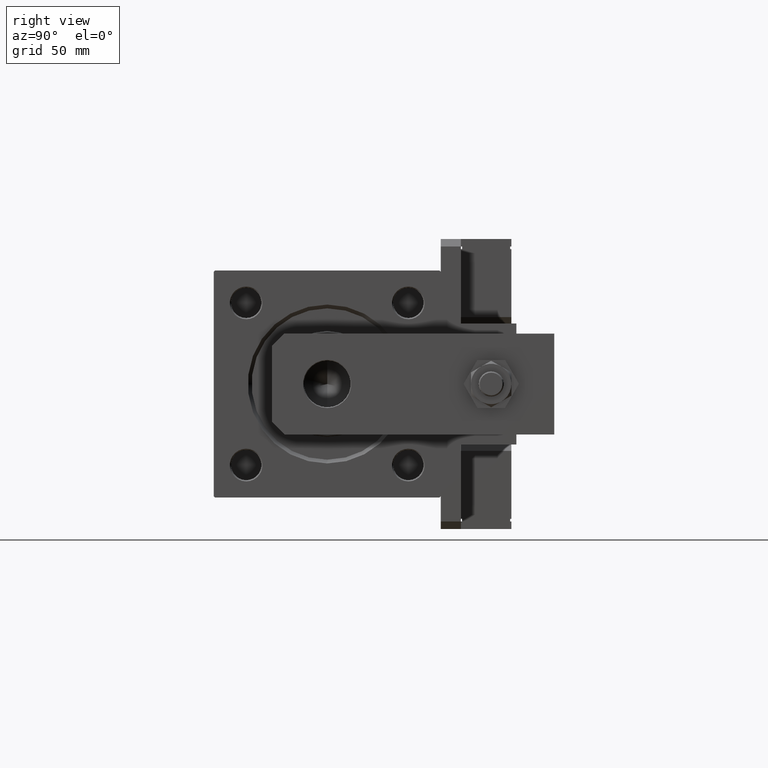
[diagram: clean part render]
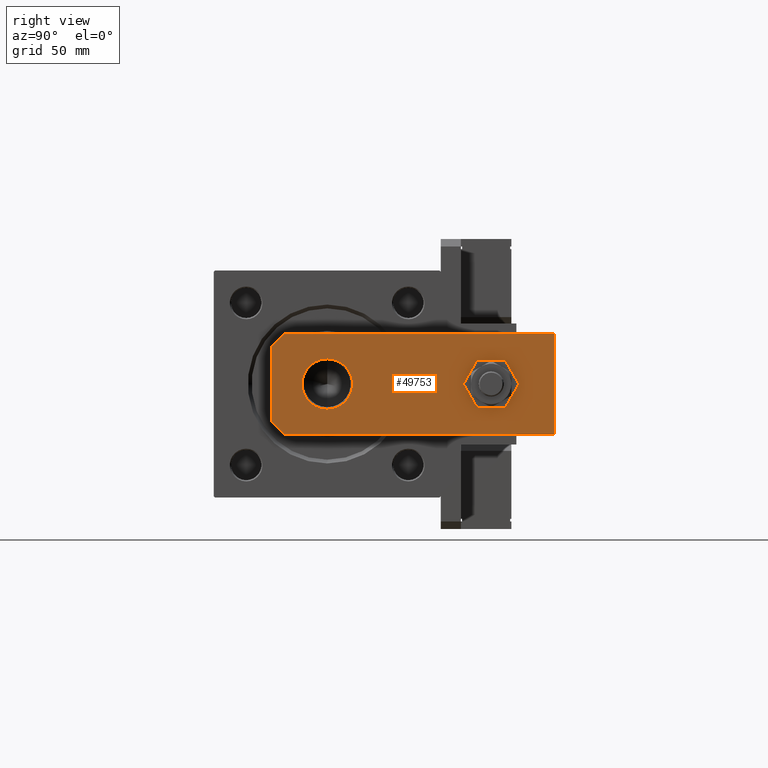
[diagram: same view with one face highlighted and labeled with its STEP entity id]
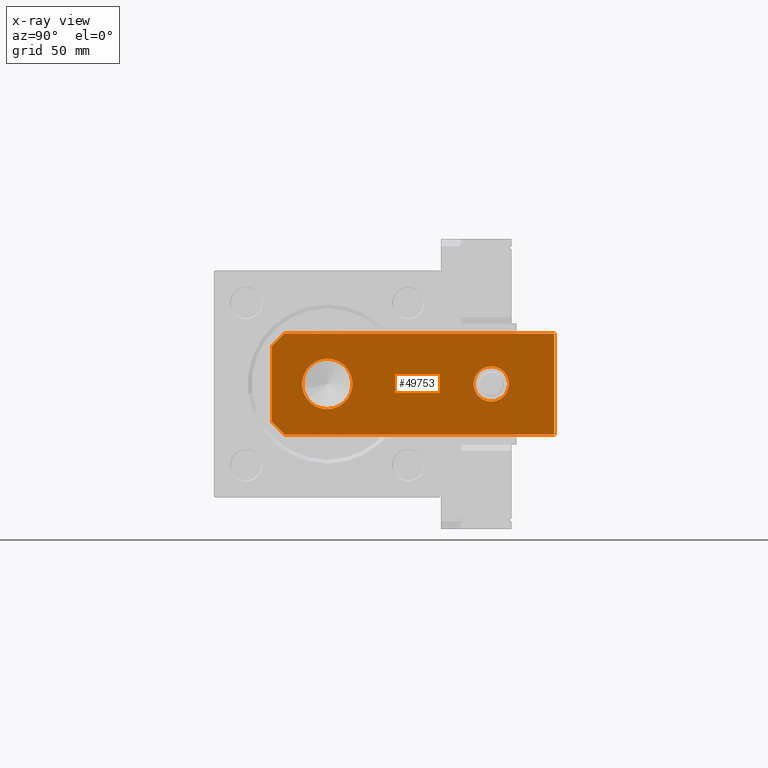
[diagram: x-ray of the same camera — body ghosted, the highlighted face saturated]
A machine part, right view. The second image highlights one B-rep face of the part: STEP entity #49753.
The next image is the same camera in x-ray: the body ghosted, the highlighted face saturated — about 0% of this face is hidden behind the body in this view.
In plain terms, the highlighted planar face has unit normal (1, 0, -0).
Its self-contained STEP definition (entity closure, byte-faithful):
#448 = VERTEX_POINT ( 'NONE', #38638 ) ;
#472 = ORIENTED_EDGE ( 'NONE', *, *, #43338, .T. ) ;
#724 = VERTEX_POINT ( 'NONE', #53335 ) ;
#794 = VECTOR ( 'NONE', #6789, 1000.000000000000000 ) ;
#1891 = DIRECTION ( 'NONE',  ( 1.000000000000000000, 0.000000000000000000, 0.000000000000000000 ) ) ;
#2321 = DIRECTION ( 'NONE',  ( 1.000000000000000000, 0.000000000000000000, 0.000000000000000000 ) ) ;
#2493 = CARTESIAN_POINT ( 'NONE',  ( -10.00000000000000178, 21.99999999999999289, 8.000000000000000000 ) ) ;
#2845 = DIRECTION ( 'NONE',  ( -1.000000000000000000, 0.000000000000000000, 0.000000000000000000 ) ) ;
#3396 = CARTESIAN_POINT ( 'NONE',  ( 19.99999999999999645, 112.0000000000000000, 8.000000000000000000 ) ) ;
#3957 = CIRCLE ( 'NONE', #44598, 10.00000000000000178 ) ;
#4179 = LINE ( 'NONE', #18036, #39280 ) ;
#4330 = VERTEX_POINT ( 'NONE', #11710 ) ;
#4646 = VECTOR ( 'NONE', #43148, 1000.000000000000000 ) ;
#5478 = CIRCLE ( 'NONE', #13619, 7.000000000000004441 ) ;
#5551 = EDGE_CURVE ( 'NONE', #4330, #53333, #24330, .T. ) ;
#6789 = DIRECTION ( 'NONE',  ( 0.7071067811865485719, 0.7071067811865465735, -0.000000000000000000 ) ) ;
#7516 = ORIENTED_EDGE ( 'NONE', *, *, #19257, .F. ) ;
#9034 = CARTESIAN_POINT ( 'NONE',  ( 19.99999999999999645, 112.0000000000000000, 8.000000000000000000 ) ) ;
#9253 = CARTESIAN_POINT ( 'NONE',  ( 0.000000000000000000, 21.99999999999999289, 8.000000000000000000 ) ) ;
#10445 = DIRECTION ( 'NONE',  ( -1.548860246407863583E-16, 1.000000000000000000, 0.000000000000000000 ) ) ;
#10957 = CARTESIAN_POINT ( 'NONE',  ( 0.000000000000000000, 0.000000000000000000, 8.000000000000000000 ) ) ;
#11710 = CARTESIAN_POINT ( 'NONE',  ( 15.00000000000001066, 0.000000000000000000, 8.000000000000000000 ) ) ;
#11747 = CARTESIAN_POINT ( 'NONE',  ( -2.000174246416480903E-16, 87.00000000000000000, 8.000000000000000000 ) ) ;
#11835 = EDGE_LOOP ( 'NONE', ( #49590, #472, #13643, #36440, #46665, #22560 ) ) ;
#11968 = VERTEX_POINT ( 'NONE', #9034 ) ;
#12459 = LINE ( 'NONE', #3396, #13698 ) ;
#13619 = AXIS2_PLACEMENT_3D ( 'NONE', #41070, #49266, #2321 ) ;
#13643 = ORIENTED_EDGE ( 'NONE', *, *, #39697, .T. ) ;
#13698 = VECTOR ( 'NONE', #2845, 1000.000000000000000 ) ;
#13845 = CARTESIAN_POINT ( 'NONE',  ( 20.00000000000001421, 0.000000000000000000, 8.000000000000000000 ) ) ;
#14548 = VERTEX_POINT ( 'NONE', #19004 ) ;
#14960 = LINE ( 'NONE', #13845, #29779 ) ;
#17751 = DIRECTION ( 'NONE',  ( 0.000000000000000000, 0.000000000000000000, 1.000000000000000000 ) ) ;
#18036 = CARTESIAN_POINT ( 'NONE',  ( -20.00000000000000355, 112.0000000000000000, 8.000000000000000000 ) ) ;
#18921 = DIRECTION ( 'NONE',  ( 1.000000000000000000, 0.000000000000000000, 0.000000000000000000 ) ) ;
#19004 = CARTESIAN_POINT ( 'NONE',  ( -20.00000000000001421, 5.000000000000018652, 8.000000000000000000 ) ) ;
#19005 = EDGE_CURVE ( 'NONE', #53333, #11968, #14960, .T. ) ;
#19257 = EDGE_CURVE ( 'NONE', #34747, #724, #37002, .T. ) ;
#19635 = VERTEX_POINT ( 'NONE', #26174 ) ;
#20247 = DIRECTION ( 'NONE',  ( 1.000000000000000000, 0.000000000000000000, 0.000000000000000000 ) ) ;
#22243 = EDGE_CURVE ( 'NONE', #38410, #47708, #5478, .T. ) ;
#22325 = DIRECTION ( 'NONE',  ( 0.000000000000000000, 0.000000000000000000, 1.000000000000000000 ) ) ;
#22560 = ORIENTED_EDGE ( 'NONE', *, *, #44516, .T. ) ;
#22774 = CARTESIAN_POINT ( 'NONE',  ( -7.500000000000027534, -7.500000000000007105, 8.000000000000000000 ) ) ;
#23411 = FACE_OUTER_BOUND ( 'NONE', #11835, .T. ) ;
#23615 = DIRECTION ( 'NONE',  ( 1.000000000000000000, 0.000000000000000000, 0.000000000000000000 ) ) ;
#24330 = LINE ( 'NONE', #54002, #794 ) ;
#25333 = DIRECTION ( 'NONE',  ( 0.000000000000000000, 0.000000000000000000, 1.000000000000000000 ) ) ;
#26174 = CARTESIAN_POINT ( 'NONE',  ( -20.00000000000000355, 112.0000000000000000, 8.000000000000000000 ) ) ;
#26410 = CARTESIAN_POINT ( 'NONE',  ( -7.000000000000004441, 87.00000000000000000, 8.000000000000000000 ) ) ;
#27158 = ORIENTED_EDGE ( 'NONE', *, *, #22243, .F. ) ;
#29779 = VECTOR ( 'NONE', #10445, 1000.000000000000000 ) ;
#30616 = EDGE_LOOP ( 'NONE', ( #7516, #30622 ) ) ;
#30622 = ORIENTED_EDGE ( 'NONE', *, *, #32789, .F. ) ;
#30709 = LINE ( 'NONE', #22774, #4646 ) ;
#32175 = FACE_BOUND ( 'NONE', #30616, .T. ) ;
#32789 = EDGE_CURVE ( 'NONE', #724, #34747, #3957, .T. ) ;
#33920 = CIRCLE ( 'NONE', #50122, 7.000000000000004441 ) ;
#34747 = VERTEX_POINT ( 'NONE', #2493 ) ;
#34945 = EDGE_CURVE ( 'NONE', #19635, #14548, #4179, .T. ) ;
#35274 = DIRECTION ( 'NONE',  ( 1.000000000000000000, 0.000000000000000000, 0.000000000000000000 ) ) ;
#35464 = EDGE_CURVE ( 'NONE', #47708, #38410, #33920, .T. ) ;
#36440 = ORIENTED_EDGE ( 'NONE', *, *, #5551, .T. ) ;
#37002 = CIRCLE ( 'NONE', #46015, 10.00000000000000178 ) ;
#38410 = VERTEX_POINT ( 'NONE', #52441 ) ;
#38638 = CARTESIAN_POINT ( 'NONE',  ( -15.00000000000001066, 0.000000000000000000, 8.000000000000000000 ) ) ;
#39280 = VECTOR ( 'NONE', #48254, 1000.000000000000000 ) ;
#39697 = EDGE_CURVE ( 'NONE', #448, #4330, #53292, .T. ) ;
#40386 = CARTESIAN_POINT ( 'NONE',  ( 20.00000000000001421, 4.999999999999989342, 8.000000000000000000 ) ) ;
#40944 = ORIENTED_EDGE ( 'NONE', *, *, #35464, .F. ) ;
#41070 = CARTESIAN_POINT ( 'NONE',  ( -2.000174246416480903E-16, 87.00000000000000000, 8.000000000000000000 ) ) ;
#41200 = FACE_BOUND ( 'NONE', #43742, .T. ) ;
#43148 = DIRECTION ( 'NONE',  ( 0.7071067811865465735, -0.7071067811865485719, 0.000000000000000000 ) ) ;
#43338 = EDGE_CURVE ( 'NONE', #14548, #448, #30709, .T. ) ;
#43742 = EDGE_LOOP ( 'NONE', ( #40944, #27158 ) ) ;
#44516 = EDGE_CURVE ( 'NONE', #11968, #19635, #12459, .T. ) ;
#44598 = AXIS2_PLACEMENT_3D ( 'NONE', #48034, #22325, #18921 ) ;
#45571 = AXIS2_PLACEMENT_3D ( 'NONE', #10957, #54203, #1891 ) ;
#46015 = AXIS2_PLACEMENT_3D ( 'NONE', #9253, #17751, #35274 ) ;
#46665 = ORIENTED_EDGE ( 'NONE', *, *, #19005, .T. ) ;
#47708 = VERTEX_POINT ( 'NONE', #26410 ) ;
#48034 = CARTESIAN_POINT ( 'NONE',  ( 0.000000000000000000, 21.99999999999999289, 8.000000000000000000 ) ) ;
#48254 = DIRECTION ( 'NONE',  ( -9.293161478447180511E-17, -1.000000000000000000, 0.000000000000000000 ) ) ;
#49266 = DIRECTION ( 'NONE',  ( 0.000000000000000000, 0.000000000000000000, 1.000000000000000000 ) ) ;
#49590 = ORIENTED_EDGE ( 'NONE', *, *, #34945, .T. ) ;
#49753 = ADVANCED_FACE ( 'NONE', ( #41200, #23411, #32175 ), #54758, .T. ) ;
#50122 = AXIS2_PLACEMENT_3D ( 'NONE', #11747, #25333, #20247 ) ;
#52441 = CARTESIAN_POINT ( 'NONE',  ( 7.000000000000004441, 87.00000000000000000, 8.000000000000000000 ) ) ;
#52982 = VECTOR ( 'NONE', #23615, 1000.000000000000000 ) ;
#53292 = LINE ( 'NONE', #53564, #52982 ) ;
#53333 = VERTEX_POINT ( 'NONE', #40386 ) ;
#53335 = CARTESIAN_POINT ( 'NONE',  ( 10.00000000000000178, 21.99999999999999289, 8.000000000000000000 ) ) ;
#53564 = CARTESIAN_POINT ( 'NONE',  ( -20.00000000000001421, 0.000000000000000000, 8.000000000000000000 ) ) ;
#54002 = CARTESIAN_POINT ( 'NONE',  ( 7.499999999999983125, -7.500000000000004441, 8.000000000000000000 ) ) ;
#54203 = DIRECTION ( 'NONE',  ( -0.000000000000000000, 0.000000000000000000, 1.000000000000000000 ) ) ;
#54758 = PLANE ( 'NONE',  #45571 ) ;